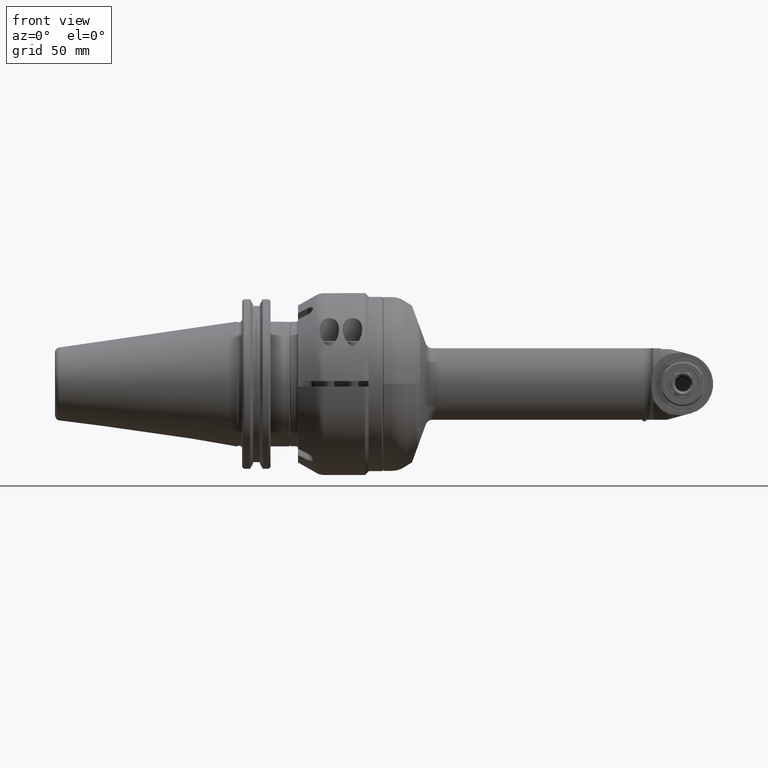
[diagram: clean part render]
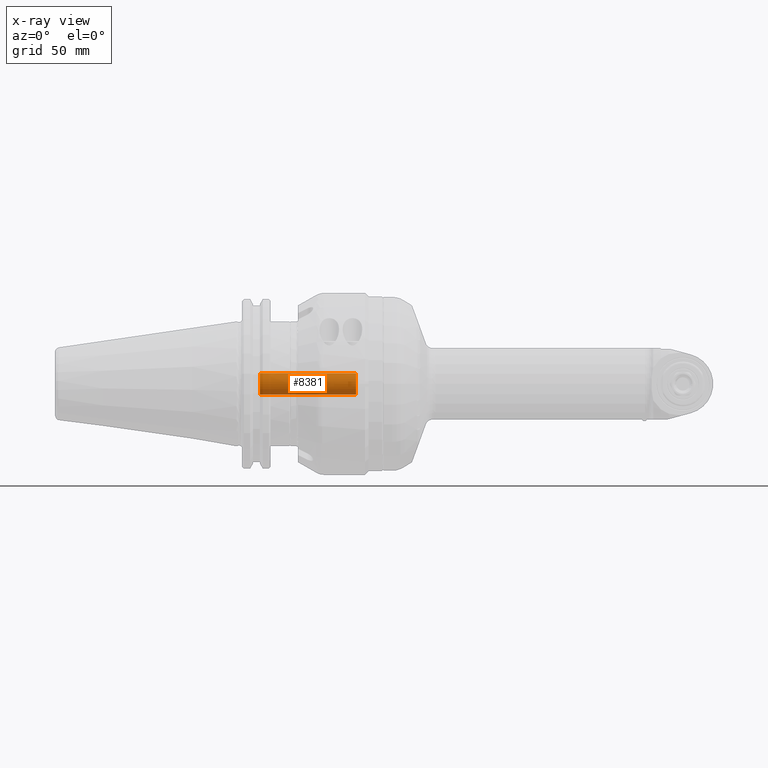
[diagram: x-ray — body ghosted, one internal face saturated and labeled with its STEP entity id]
A machine part, front view, then the same camera in x-ray: the body is ghosted and one INTERNAL B-rep face — a face not visible from any outside direction — is saturated and labeled: STEP entity #8381.
In plain terms, the highlighted cylindrical surface (bore or boss wall) has radius 6 mm, axis along (-1, 0, 0).
Its self-contained STEP definition (entity closure, byte-faithful):
#744=B_SPLINE_CURVE_WITH_KNOTS('',3,(#13518,#13519,#13520,#13521,#13522,
#13523,#13524,#13525,#13526,#13527,#13528,#13529,#13530,#13531,#13532,#13533,
#13534,#13535),.UNSPECIFIED.,.F.,.F.,(4,2,2,2,2,2,2,2,4),(-1.88331445659921,
-1.72723965461919,-1.57116485263918,-1.41335391185266,-1.25554297106614,
-1.09773203027962,-0.939921089493101,-0.783846287513086,-0.62777148553307),
 .UNSPECIFIED.);
#745=B_SPLINE_CURVE_WITH_KNOTS('',3,(#13537,#13538,#13539,#13540,#13541,
#13542,#13543,#13544,#13545,#13546,#13547,#13548,#13549,#13550,#13551,#13552,
#13553,#13554,#13555),.UNSPECIFIED.,.F.,.F.,(4,2,2,2,3,2,2,2,4),(-0.62777148553307,
-0.471696683553054,-0.315621881573038,-0.157810940786519,0.,0.157810940786519,
0.315621881573038,0.471696683553054,0.62777148553307),.UNSPECIFIED.);
#1318=FACE_OUTER_BOUND('',#1832,.T.);
#1832=EDGE_LOOP('',(#6576,#6577,#6578,#6579,#6580,#6581,#6582,#6583,#6584));
#2413=LINE('',#13516,#2962);
#2414=LINE('',#13536,#2963);
#2962=VECTOR('',#10607,6.);
#2963=VECTOR('',#10608,6.);
#3422=CIRCLE('',#9123,6.);
#3424=CIRCLE('',#9126,6.);
#3425=CIRCLE('',#9127,6.);
#3980=VERTEX_POINT('',#13507);
#3982=VERTEX_POINT('',#13512);
#3983=VERTEX_POINT('',#13513);
#3984=VERTEX_POINT('',#13515);
#3985=VERTEX_POINT('',#13517);
#4925=EDGE_CURVE('',#3980,#3980,#3422,.T.);
#4927=EDGE_CURVE('',#3982,#3983,#3424,.T.);
#4928=EDGE_CURVE('',#3982,#3984,#2413,.T.);
#4929=EDGE_CURVE('',#3984,#3985,#744,.T.);
#4930=EDGE_CURVE('',#3985,#3980,#2414,.T.);
#4931=EDGE_CURVE('',#3985,#3984,#745,.T.);
#4932=EDGE_CURVE('',#3983,#3982,#3425,.T.);
#6576=ORIENTED_EDGE('',*,*,#4927,.F.);
#6577=ORIENTED_EDGE('',*,*,#4928,.T.);
#6578=ORIENTED_EDGE('',*,*,#4929,.T.);
#6579=ORIENTED_EDGE('',*,*,#4930,.T.);
#6580=ORIENTED_EDGE('',*,*,#4925,.F.);
#6581=ORIENTED_EDGE('',*,*,#4930,.F.);
#6582=ORIENTED_EDGE('',*,*,#4931,.T.);
#6583=ORIENTED_EDGE('',*,*,#4928,.F.);
#6584=ORIENTED_EDGE('',*,*,#4932,.F.);
#8125=CYLINDRICAL_SURFACE('',#9125,6.);
#8381=ADVANCED_FACE('',(#1318),#8125,.T.);
#9123=AXIS2_PLACEMENT_3D('',#13508,#10599,#10600);
#9125=AXIS2_PLACEMENT_3D('',#13511,#10603,#10604);
#9126=AXIS2_PLACEMENT_3D('',#13514,#10605,#10606);
#9127=AXIS2_PLACEMENT_3D('',#13556,#10609,#10610);
#10599=DIRECTION('center_axis',(1.,0.,0.));
#10600=DIRECTION('ref_axis',(0.,-1.,0.));
#10603=DIRECTION('center_axis',(-1.,0.,0.));
#10604=DIRECTION('ref_axis',(0.,1.,0.));
#10605=DIRECTION('center_axis',(-1.,0.,0.));
#10606=DIRECTION('ref_axis',(0.,1.,0.));
#10607=DIRECTION('',(1.,0.,0.));
#10608=DIRECTION('',(1.,0.,0.));
#10609=DIRECTION('center_axis',(-1.,0.,0.));
#10610=DIRECTION('ref_axis',(0.,1.,0.));
#13507=CARTESIAN_POINT('',(-26.25,59.,0.));
#13508=CARTESIAN_POINT('Origin',(-26.25,65.,0.));
#13511=CARTESIAN_POINT('Origin',(-2.24999749404,65.,0.));
#13512=CARTESIAN_POINT('',(-80.05,59.,0.));
#13513=CARTESIAN_POINT('',(-80.05,65.,6.));
#13514=CARTESIAN_POINT('Origin',(-80.05,65.,0.));
#13515=CARTESIAN_POINT('',(-50.75,59.,0.));
#13516=CARTESIAN_POINT('',(-2.24999749404,59.,7.34788079488412E-16));
#13517=CARTESIAN_POINT('',(-42.75,59.,2.28616161666061E-16));
#13518=CARTESIAN_POINT('Ctrl Pts',(-50.75,59.,0.));
#13519=CARTESIAN_POINT('Ctrl Pts',(-50.75,59.,0.520249339933386));
#13520=CARTESIAN_POINT('Ctrl Pts',(-50.6424890628061,59.0732861795248,1.06408494730268));
#13521=CARTESIAN_POINT('Ctrl Pts',(-50.2283646575541,59.336654089527,2.04566028873394));
#13522=CARTESIAN_POINT('Ctrl Pts',(-49.9225397180485,59.5245614597835,2.48431453144388));
#13523=CARTESIAN_POINT('Ctrl Pts',(-49.2304867051743,59.8944793551634,3.17636754431808));
#13524=CARTESIAN_POINT('Ctrl Pts',(-48.7926670179931,60.1051049221371,3.47966275670567));
#13525=CARTESIAN_POINT('Ctrl Pts',(-47.8166359204138,60.4255886215837,3.8913775523215));
#13526=CARTESIAN_POINT('Ctrl Pts',(-47.2760364692884,60.5278640450004,4.));
#13527=CARTESIAN_POINT('Ctrl Pts',(-46.2239635307116,60.5278640450004,4.));
#13528=CARTESIAN_POINT('Ctrl Pts',(-45.6833640795862,60.4255886215837,3.8913775523215));
#13529=CARTESIAN_POINT('Ctrl Pts',(-44.7073329820069,60.1051049221371,3.47966275670567));
#13530=CARTESIAN_POINT('Ctrl Pts',(-44.2695132948257,59.8944793551634,3.17636754431808));
#13531=CARTESIAN_POINT('Ctrl Pts',(-43.5774602819515,59.5245614597835,2.48431453144388));
#13532=CARTESIAN_POINT('Ctrl Pts',(-43.2716353424459,59.336654089527,2.04566028873394));
#13533=CARTESIAN_POINT('Ctrl Pts',(-42.8575109371939,59.0732861795248,1.06408494730268));
#13534=CARTESIAN_POINT('Ctrl Pts',(-42.75,59.,0.520249339933386));
#13535=CARTESIAN_POINT('Ctrl Pts',(-42.75,59.,0.));
#13536=CARTESIAN_POINT('',(-2.24999749404,59.,7.34788079488412E-16));
#13537=CARTESIAN_POINT('Ctrl Pts',(-42.75,59.,-9.71445146547012E-16));
#13538=CARTESIAN_POINT('Ctrl Pts',(-42.75,59.,-0.520249339933387));
#13539=CARTESIAN_POINT('Ctrl Pts',(-42.8575109371939,59.0732861795248,-1.06408494730267));
#13540=CARTESIAN_POINT('Ctrl Pts',(-43.2716353424459,59.336654089527,-2.04566028873394));
#13541=CARTESIAN_POINT('Ctrl Pts',(-43.5774602819515,59.5245614597835,-2.48431453144388));
#13542=CARTESIAN_POINT('Ctrl Pts',(-44.2695132948257,59.8944793551634,-3.17636754431808));
#13543=CARTESIAN_POINT('Ctrl Pts',(-44.7073329820069,60.1051049221371,-3.47966275670567));
#13544=CARTESIAN_POINT('Ctrl Pts',(-45.6833640795862,60.4255886215837,-3.8913775523215));
#13545=CARTESIAN_POINT('Ctrl Pts',(-46.2239635307116,60.5278640450004,-4.));
#13546=CARTESIAN_POINT('Ctrl Pts',(-46.75,60.5278640450004,-4.));
#13547=CARTESIAN_POINT('Ctrl Pts',(-47.2760364692884,60.5278640450004,-4.));
#13548=CARTESIAN_POINT('Ctrl Pts',(-47.8166359204138,60.4255886215837,-3.8913775523215));
#13549=CARTESIAN_POINT('Ctrl Pts',(-48.7926670179931,60.1051049221371,-3.47966275670568));
#13550=CARTESIAN_POINT('Ctrl Pts',(-49.2304867051743,59.8944793551634,-3.17636754431808));
#13551=CARTESIAN_POINT('Ctrl Pts',(-49.9225397180485,59.5245614597835,-2.48431453144388));
#13552=CARTESIAN_POINT('Ctrl Pts',(-50.2283646575541,59.336654089527,-2.04566028873394));
#13553=CARTESIAN_POINT('Ctrl Pts',(-50.6424890628061,59.0732861795248,-1.06408494730267));
#13554=CARTESIAN_POINT('Ctrl Pts',(-50.75,59.,-0.520249339933386));
#13555=CARTESIAN_POINT('Ctrl Pts',(-50.75,59.,7.63278329429795E-16));
#13556=CARTESIAN_POINT('Origin',(-80.05,65.,0.));